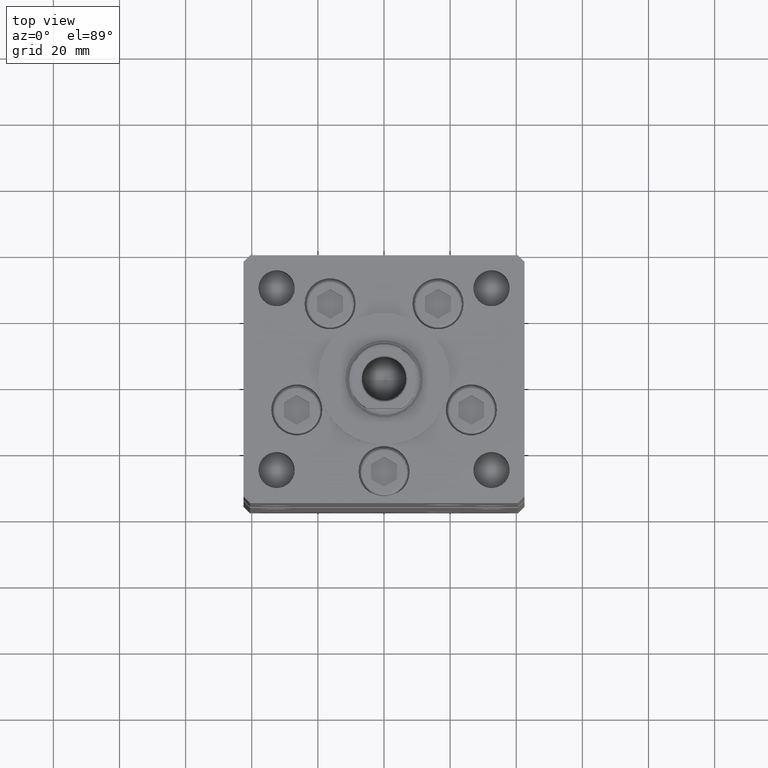
[diagram: clean part render]
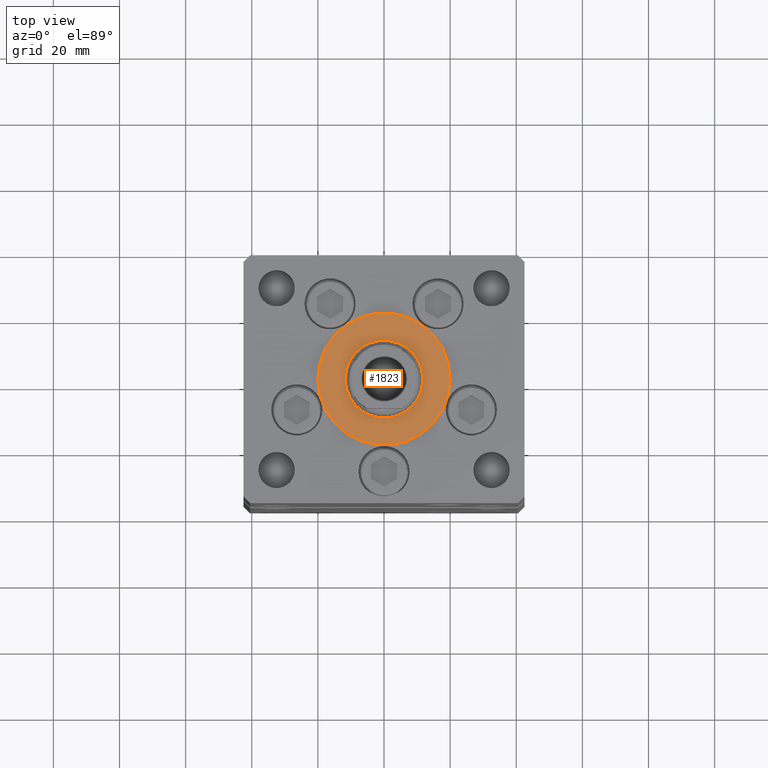
[diagram: same view with one face highlighted and labeled with its STEP entity id]
A machine part, top view. The second image highlights one B-rep face of the part: STEP entity #1823.
In plain terms, the highlighted planar face has unit normal (0, 0, 1).
Its self-contained STEP definition (entity closure, byte-faithful):
#655 = AXIS2_PLACEMENT_3D ( 'NONE', #30659, #14797, #13999 ) ;
#1133 = EDGE_LOOP ( 'NONE', ( #30746, #11624 ) ) ;
#1823 = ADVANCED_FACE ( 'NONE', ( #25944, #5224 ), #29711, .T. ) ;
#3152 = CARTESIAN_POINT ( 'NONE',  ( -20.00000000000000000, -6.938893903907228378E-15, 2.000000000000000000 ) ) ;
#5224 = FACE_OUTER_BOUND ( 'NONE', #1133, .T. ) ;
#5983 = ORIENTED_EDGE ( 'NONE', *, *, #24627, .F. ) ;
#9006 = DIRECTION ( 'NONE',  ( 0.000000000000000000, 0.000000000000000000, 1.000000000000000000 ) ) ;
#10969 = EDGE_CURVE ( 'NONE', #38452, #45542, #13899, .T. ) ;
#11624 = ORIENTED_EDGE ( 'NONE', *, *, #10969, .T. ) ;
#12011 = DIRECTION ( 'NONE',  ( 1.000000000000000000, 0.000000000000000000, 0.000000000000000000 ) ) ;
#13899 = CIRCLE ( 'NONE', #31949, 20.00000000000000000 ) ;
#13999 = DIRECTION ( 'NONE',  ( 1.000000000000000000, 0.000000000000000000, 0.000000000000000000 ) ) ;
#14354 = EDGE_CURVE ( 'NONE', #18563, #45683, #51798, .T. ) ;
#14797 = DIRECTION ( 'NONE',  ( 0.000000000000000000, 0.000000000000000000, 1.000000000000000000 ) ) ;
#17378 = CARTESIAN_POINT ( 'NONE',  ( -11.75000000000000178, -5.499933914909088809E-15, 2.000000000000000000 ) ) ;
#18265 = CARTESIAN_POINT ( 'NONE',  ( 0.000000000000000000, -6.938893903907228378E-15, 2.000000000000000000 ) ) ;
#18563 = VERTEX_POINT ( 'NONE', #46676 ) ;
#21374 = DIRECTION ( 'NONE',  ( 1.000000000000000000, 0.000000000000000000, -0.000000000000000000 ) ) ;
#22532 = CARTESIAN_POINT ( 'NONE',  ( 20.00000000000000000, -4.489600305612522259E-15, 2.000000000000000000 ) ) ;
#23899 = CARTESIAN_POINT ( 'NONE',  ( 0.000000000000000000, -6.938893903907228378E-15, 2.000000000000000000 ) ) ;
#24171 = DIRECTION ( 'NONE',  ( 1.000000000000000000, 0.000000000000000000, 0.000000000000000000 ) ) ;
#24627 = EDGE_CURVE ( 'NONE', #45683, #18563, #45129, .T. ) ;
#25944 = FACE_BOUND ( 'NONE', #34649, .T. ) ;
#28147 = DIRECTION ( 'NONE',  ( 1.000000000000000000, 0.000000000000000000, 0.000000000000000000 ) ) ;
#28686 = DIRECTION ( 'NONE',  ( 0.000000000000000000, 0.000000000000000000, 1.000000000000000000 ) ) ;
#29686 = AXIS2_PLACEMENT_3D ( 'NONE', #18265, #48593, #28147 ) ;
#29711 = PLANE ( 'NONE',  #52430 ) ;
#30659 = CARTESIAN_POINT ( 'NONE',  ( 0.000000000000000000, -6.938893903907228378E-15, 2.000000000000000000 ) ) ;
#30746 = ORIENTED_EDGE ( 'NONE', *, *, #31399, .T. ) ;
#31399 = EDGE_CURVE ( 'NONE', #45542, #38452, #47021, .T. ) ;
#31949 = AXIS2_PLACEMENT_3D ( 'NONE', #48857, #28686, #12011 ) ;
#34649 = EDGE_LOOP ( 'NONE', ( #46120, #5983 ) ) ;
#38315 = CARTESIAN_POINT ( 'NONE',  ( 0.000000000000000000, -6.938893903907228378E-15, 2.000000000000000000 ) ) ;
#38452 = VERTEX_POINT ( 'NONE', #22532 ) ;
#44614 = DIRECTION ( 'NONE',  ( 0.000000000000000000, 0.000000000000000000, 1.000000000000000000 ) ) ;
#45129 = CIRCLE ( 'NONE', #29686, 11.75000000000000178 ) ;
#45542 = VERTEX_POINT ( 'NONE', #3152 ) ;
#45683 = VERTEX_POINT ( 'NONE', #17378 ) ;
#46120 = ORIENTED_EDGE ( 'NONE', *, *, #14354, .F. ) ;
#46676 = CARTESIAN_POINT ( 'NONE',  ( 11.75000000000000178, -6.938893903907228378E-15, 2.000000000000000000 ) ) ;
#47021 = CIRCLE ( 'NONE', #655, 20.00000000000000000 ) ;
#48593 = DIRECTION ( 'NONE',  ( 0.000000000000000000, 0.000000000000000000, 1.000000000000000000 ) ) ;
#48857 = CARTESIAN_POINT ( 'NONE',  ( 0.000000000000000000, -6.938893903907228378E-15, 2.000000000000000000 ) ) ;
#50950 = AXIS2_PLACEMENT_3D ( 'NONE', #23899, #44614, #24171 ) ;
#51798 = CIRCLE ( 'NONE', #50950, 11.75000000000000178 ) ;
#52430 = AXIS2_PLACEMENT_3D ( 'NONE', #38315, #9006, #21374 ) ;